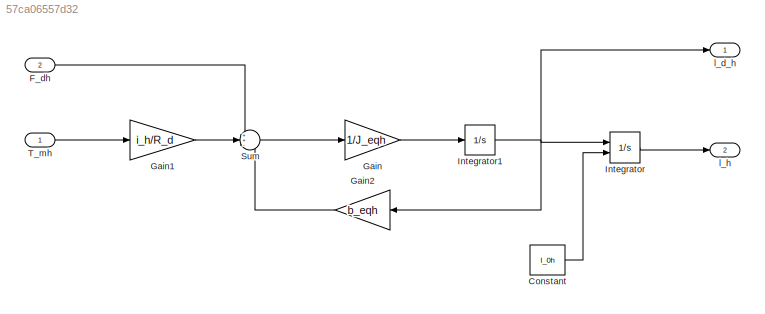
MODEL slx_57ca06557d32
KIND model
CONFIG AbsTol = auto
CONFIG EnableMultiTasking = off
CONFIG FixedStep = auto
CONFIG MaxStep = auto
CONFIG MinStep = auto
CONFIG RelTol = 1e-3
CONFIG SampleTimeConstraint = Unconstrained
CONFIG Solver = VariableStepAuto
CONFIG SolverName = VariableStepAuto
CONFIG StartTime = 0.0
CONFIG StopTime = 10.0
BLOCK [Constant] Constant
  Value = l_0h
BLOCK [Inport] F_dh
  IconDisplay = Port number
  Port = 2
BLOCK [Gain] Gain
  Gain = 1/J_eqh
  OutDataTypeStr = Inherit: Inherit via internal rule
  ParamDataTypeStr = Inherit: Inherit via internal rule
  SaturateOnIntegerOverflow = off
BLOCK [Gain] Gain1
  Gain = i_h/R_d
  OutDataTypeStr = Inherit: Inherit via internal rule
  ParamDataTypeStr = Inherit: Inherit via internal rule
  SaturateOnIntegerOverflow = off
BLOCK [Gain] Gain2
  Gain = b_eqh
  OutDataTypeStr = Inherit: Inherit via internal rule
  ParamDataTypeStr = Inherit: Inherit via internal rule
  SaturateOnIntegerOverflow = off
BLOCK [Integrator] Integrator
  InitialConditionSource = external
  Ports = [2, 1]
BLOCK [Integrator] Integrator1
  Ports = [1, 1]
BLOCK [Sum] Sum
  IconShape = round
  InputSameDT = off
  Inputs = ++-
  OutDataTypeStr = Inherit: Inherit via internal rule
  Ports = [3, 1]
  SaturateOnIntegerOverflow = off
BLOCK [Inport] T_mh
  IconDisplay = Port number
BLOCK [Outport] l_d_h
  IconDisplay = Port number
BLOCK [Outport] l_h
  IconDisplay = Port number
  Port = 2
LINE Constant:1 -> Integrator:2
LINE F_dh:1 -> Sum:1
LINE Gain1:1 -> Sum:2
LINE Gain2:1 -> Sum:3
LINE Gain:1 -> Integrator1:1
NET Integrator1:1 -> Gain2:1, Integrator:1, l_d_h:1
LINE Integrator:1 -> l_h:1
LINE Sum:1 -> Gain:1
LINE T_mh:1 -> Gain1:1
note: NET lines group one-source signal fan-out (src -> all destinations, sorted); 1:1 wires keep LINE
